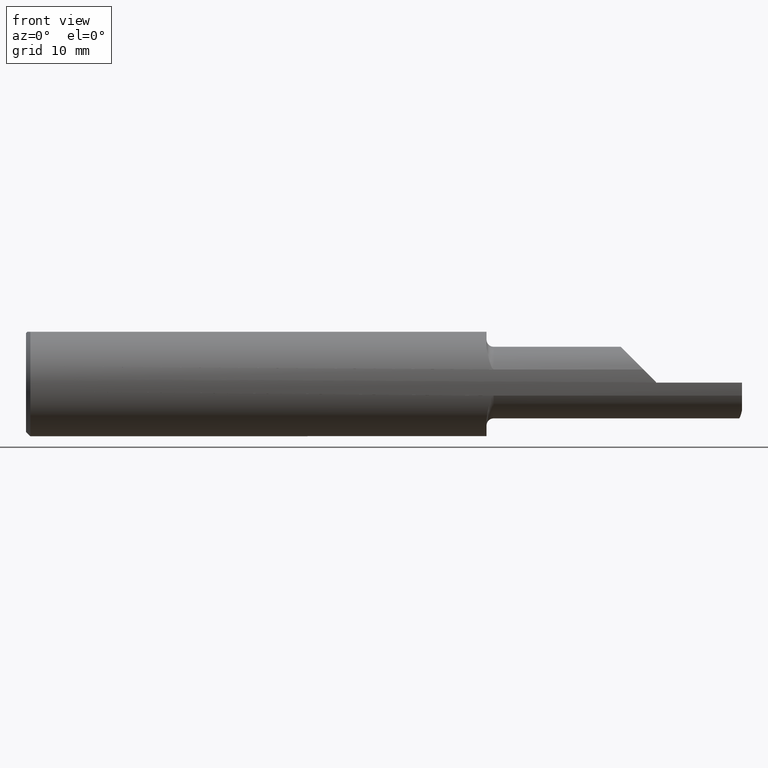
[diagram: clean part render]
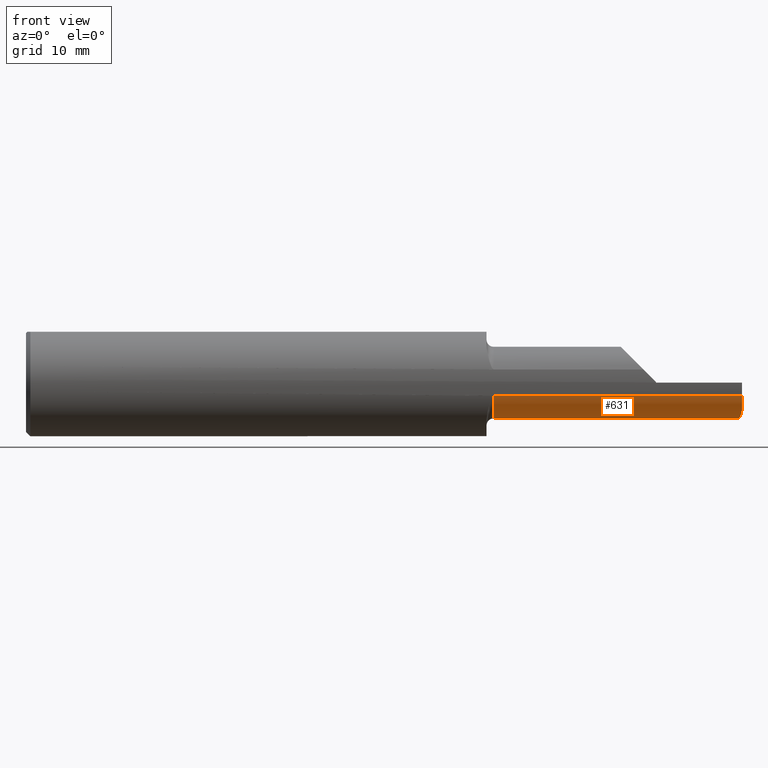
[diagram: same view with one face highlighted and labeled with its STEP entity id]
A machine part, front view. The second image highlights one B-rep face of the part: STEP entity #631.
In plain terms, the highlighted cylindrical surface (edge-blend (fillet) strip) has radius 3.175 mm, axis along (-1, -0, -0).
Its self-contained STEP definition (entity closure, byte-faithful):
#5 = CARTESIAN_POINT ( 'NONE',  ( 1.632999999999999785, -0.06535000000000000531, -0.1249999999999999584 ) ) ;
#9 = DIRECTION ( 'NONE',  ( -1.000000000000000000, -0.000000000000000000, -0.000000000000000000 ) ) ;
#23 = ORIENTED_EDGE ( 'NONE', *, *, #576, .T. ) ;
#54 = CARTESIAN_POINT ( 'NONE',  ( 2.277504986094757822, -0.06535000000000003306, -0.1249999999999999861 ) ) ;
#66 = DIRECTION ( 'NONE',  ( 0.000000000000000000, 0.000000000000000000, -1.000000000000000000 ) ) ;
#72 = DIRECTION ( 'NONE',  ( 1.000000000000000000, 0.000000000000000000, 0.000000000000000000 ) ) ;
#110 = DIRECTION ( 'NONE',  ( 1.000000000000000000, -0.000000000000000000, -0.000000000000000000 ) ) ;
#117 = AXIS2_PLACEMENT_3D ( 'NONE', #901, #110, #811 ) ;
#135 = CARTESIAN_POINT ( 'NONE',  ( 1.632999999999999785, -0.06535000000000003306, 0.000000000000000000 ) ) ;
#153 = CARTESIAN_POINT ( 'NONE',  ( 2.500000000000000000, -0.1431654907182394187, -0.09782509598400397632 ) ) ;
#166 = CARTESIAN_POINT ( 'NONE',  ( 2.495856300306567466, -0.1208312645254836365, -0.1155909744993251775 ) ) ;
#175 = CARTESIAN_POINT ( 'NONE',  ( 2.500000000000000000, -0.1431654907182394187, -0.09782509598400397632 ) ) ;
#178 = ORIENTED_EDGE ( 'NONE', *, *, #580, .T. ) ;
#247 = EDGE_CURVE ( 'NONE', #953, #352, #1002, .T. ) ;
#254 = ORIENTED_EDGE ( 'NONE', *, *, #499, .F. ) ;
#260 = EDGE_CURVE ( 'NONE', #690, #951, #645, .T. ) ;
#264 = CIRCLE ( 'NONE', #117, 0.1250000000000000000 ) ;
#301 = CIRCLE ( 'NONE', #635, 0.1249999999999999584 ) ;
#310 = VERTEX_POINT ( 'NONE', #333 ) ;
#333 = CARTESIAN_POINT ( 'NONE',  ( 1.632999999999999785, -0.1816805279265493456, -0.04574066322573741572 ) ) ;
#352 = VERTEX_POINT ( 'NONE', #555 ) ;
#381 = CARTESIAN_POINT ( 'NONE',  ( 1.935500000000000220, -0.1816805279265493456, -0.04574066322573741572 ) ) ;
#386 = DIRECTION ( 'NONE',  ( -1.000000000000000000, -0.000000000000000000, -0.000000000000000000 ) ) ;
#411 = ORIENTED_EDGE ( 'NONE', *, *, #260, .F. ) ;
#422 = EDGE_CURVE ( 'NONE', #520, #953, #264, .T. ) ;
#451 = LINE ( 'NONE', #381, #750 ) ;
#499 = EDGE_CURVE ( 'NONE', #352, #690, #650, .T. ) ;
#506 = CARTESIAN_POINT ( 'NONE',  ( 2.500000000000000000, -0.1816805279265493456, -0.04574066322573741572 ) ) ;
#520 = VERTEX_POINT ( 'NONE', #506 ) ;
#525 = EDGE_LOOP ( 'NONE', ( #411, #254, #746, #660, #178, #23 ) ) ;
#526 = VECTOR ( 'NONE', #744, 39.37007874015748143 ) ;
#555 = CARTESIAN_POINT ( 'NONE',  ( 2.489842622564257368, -0.06535000000000003306, -0.1249999999999999861 ) ) ;
#576 = EDGE_CURVE ( 'NONE', #310, #951, #301, .T. ) ;
#580 = EDGE_CURVE ( 'NONE', #520, #310, #451, .T. ) ;
#595 = VECTOR ( 'NONE', #9, 39.37007874015748143 ) ;
#609 = FACE_OUTER_BOUND ( 'NONE', #525, .T. ) ;
#631 = ADVANCED_FACE ( 'NONE', ( #609 ), #917, .T. ) ;
#635 = AXIS2_PLACEMENT_3D ( 'NONE', #135, #72, #66 ) ;
#645 = LINE ( 'NONE', #938, #595 ) ;
#650 = LINE ( 'NONE', #958, #526 ) ;
#660 = ORIENTED_EDGE ( 'NONE', *, *, #422, .F. ) ;
#690 = VERTEX_POINT ( 'NONE', #54 ) ;
#692 = DIRECTION ( 'NONE',  ( -1.000000000000000000, -0.000000000000000000, -0.000000000000000000 ) ) ;
#709 = CARTESIAN_POINT ( 'NONE',  ( 2.492339414901687533, -0.09388846700596117922, -0.1250000000000000000 ) ) ;
#744 = DIRECTION ( 'NONE',  ( -1.000000000000000000, -0.000000000000000000, -0.000000000000000000 ) ) ;
#746 = ORIENTED_EDGE ( 'NONE', *, *, #247, .F. ) ;
#750 = VECTOR ( 'NONE', #386, 39.37007874015748143 ) ;
#795 = CARTESIAN_POINT ( 'NONE',  ( 2.489842622564257368, -0.06535000000000003306, -0.1249999999999999861 ) ) ;
#811 = DIRECTION ( 'NONE',  ( 0.000000000000000000, 0.000000000000000000, 1.000000000000000000 ) ) ;
#846 = CARTESIAN_POINT ( 'NONE',  ( 1.607999999999999874, -0.06535000000000003306, 0.000000000000000000 ) ) ;
#901 = CARTESIAN_POINT ( 'NONE',  ( 2.500000000000000000, -0.06535000000000003306, 0.000000000000000000 ) ) ;
#917 = CYLINDRICAL_SURFACE ( 'NONE', #998, 0.1249999999999999584 ) ;
#938 = CARTESIAN_POINT ( 'NONE',  ( 1.607999999999999874, -0.06535000000000000531, -0.1249999999999999584 ) ) ;
#951 = VERTEX_POINT ( 'NONE', #5 ) ;
#953 = VERTEX_POINT ( 'NONE', #175 ) ;
#958 = CARTESIAN_POINT ( 'NONE',  ( 2.500000000000000000, -0.06535000000000003306, -0.1249999999999999861 ) ) ;
#972 = DIRECTION ( 'NONE',  ( 0.000000000000000000, 0.000000000000000000, 1.000000000000000000 ) ) ;
#998 = AXIS2_PLACEMENT_3D ( 'NONE', #846, #692, #972 ) ;
#1002 =( BOUNDED_CURVE ( )  B_SPLINE_CURVE ( 3, ( #153, #166, #709, #795 ),
 .UNSPECIFIED., .F., .F. ) 
 B_SPLINE_CURVE_WITH_KNOTS ( ( 4, 4 ),
 ( 4.993931103440154118, 5.665894734938331290 ),
 .UNSPECIFIED. ) 
 CURVE ( )  GEOMETRIC_REPRESENTATION_ITEM ( )  RATIONAL_B_SPLINE_CURVE ( ( 1.000000000000000000, 0.9627247091652257893, 0.9627247091652257893, 1.000000000000000000 ) ) 
 REPRESENTATION_ITEM ( '' )  );